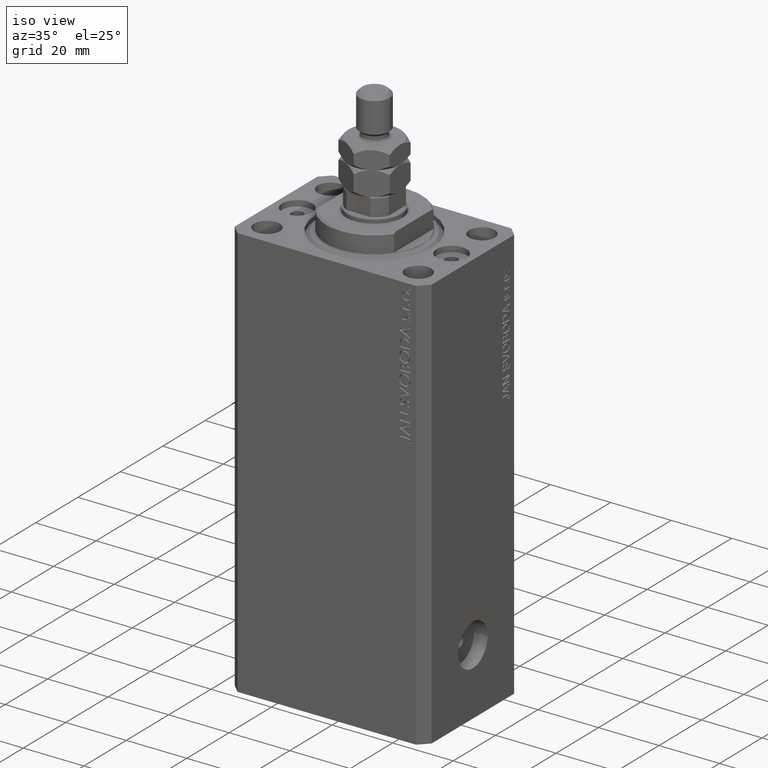
[diagram: clean part render]
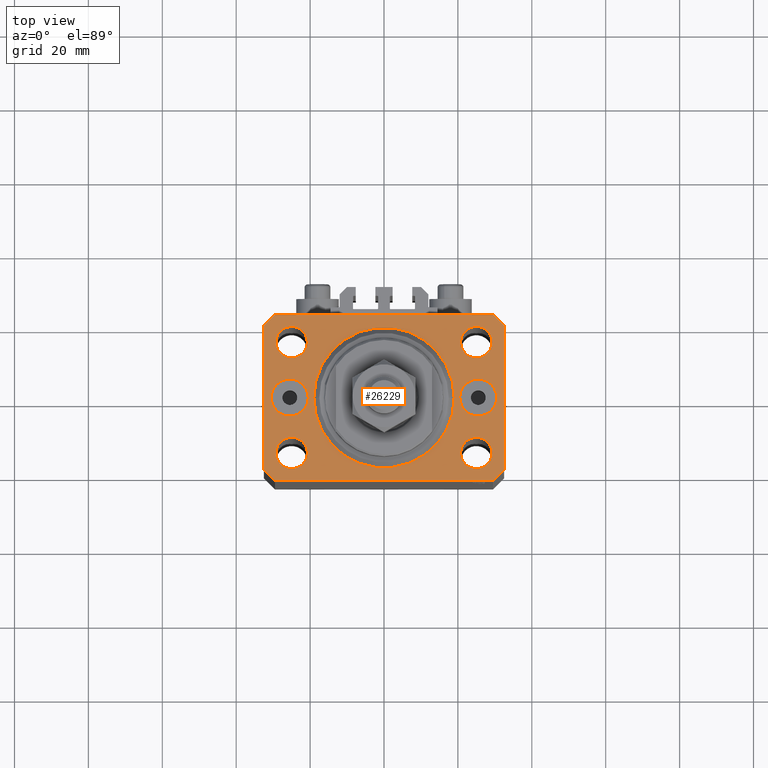
[diagram: tour spotlight — one face highlighted and labeled with its STEP entity id]
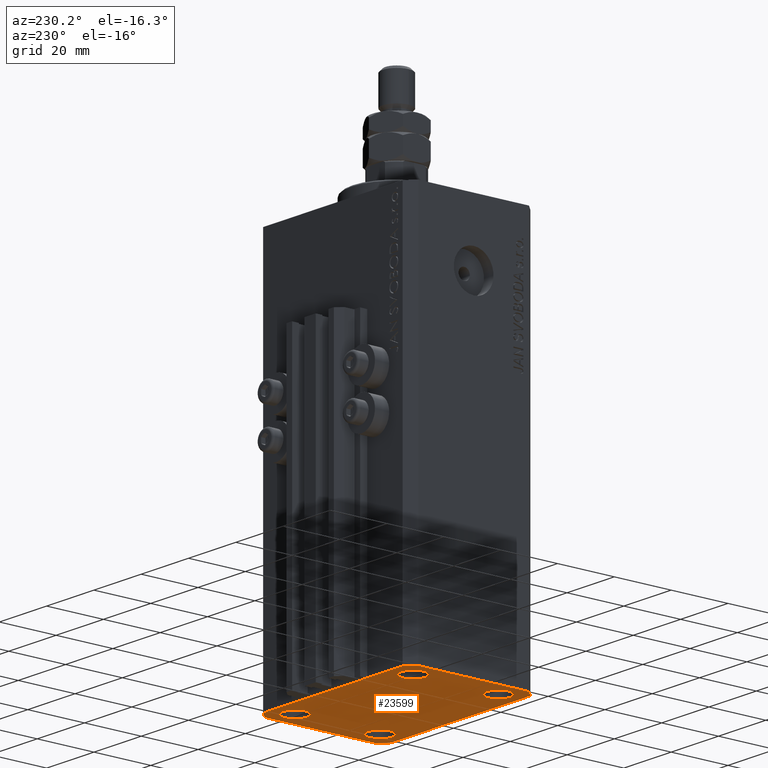
[diagram: tour spotlight — one face highlighted and labeled with its STEP entity id]
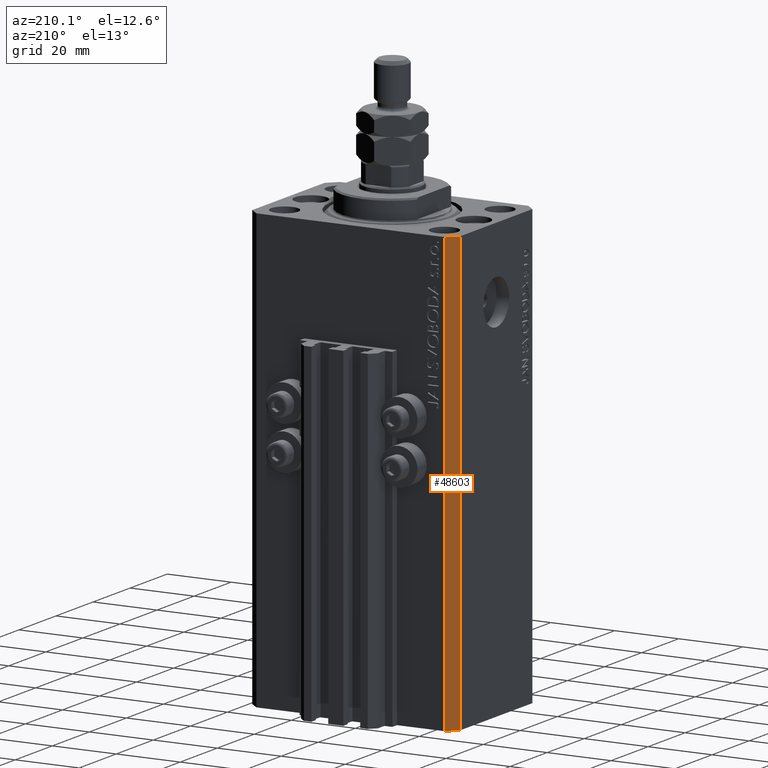
[diagram: tour spotlight — one face highlighted and labeled with its STEP entity id]
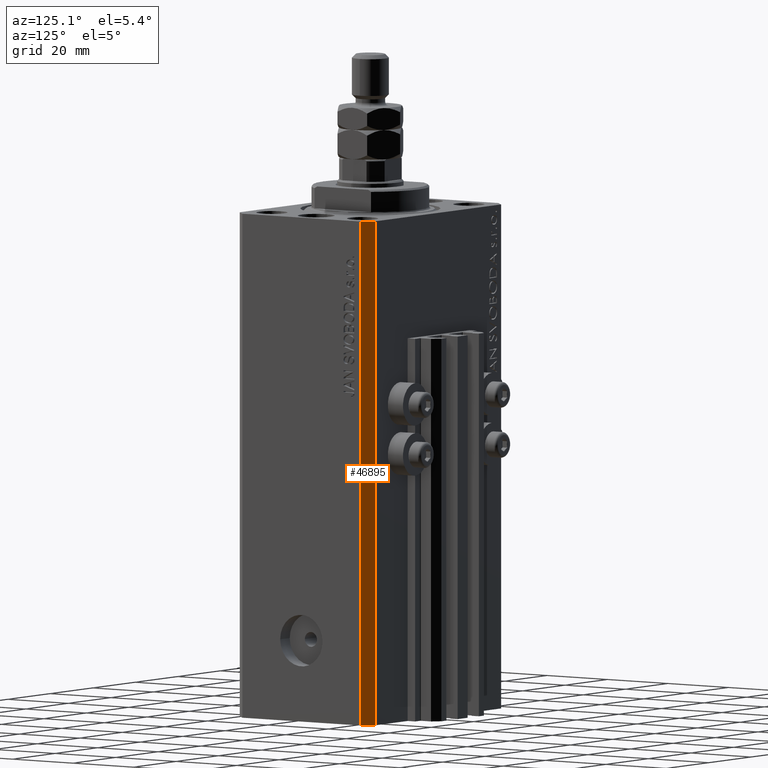
[diagram: tour spotlight — one face highlighted and labeled with its STEP entity id]
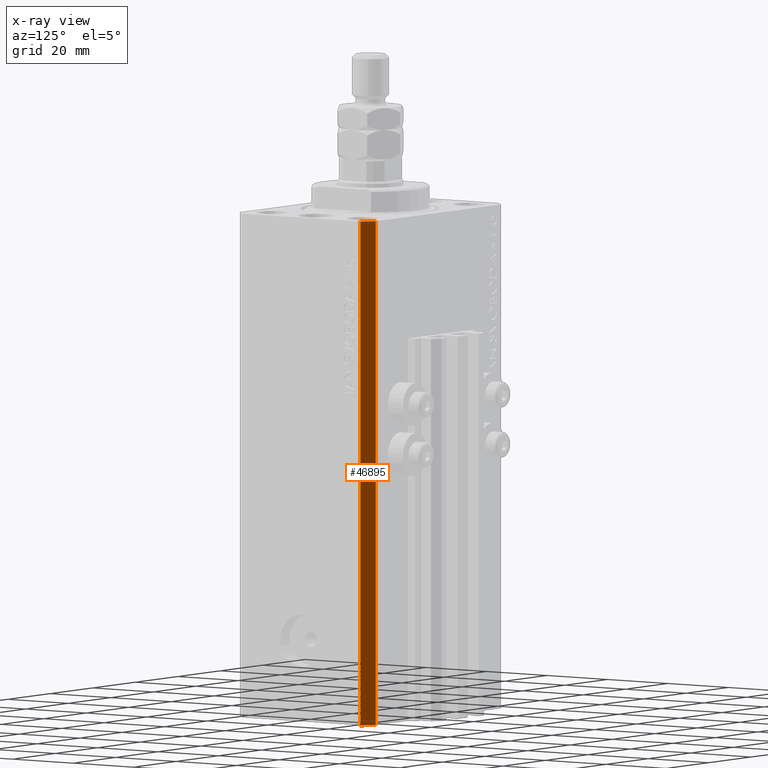
[diagram: x-ray of the same camera — body ghosted, this tour face saturated]
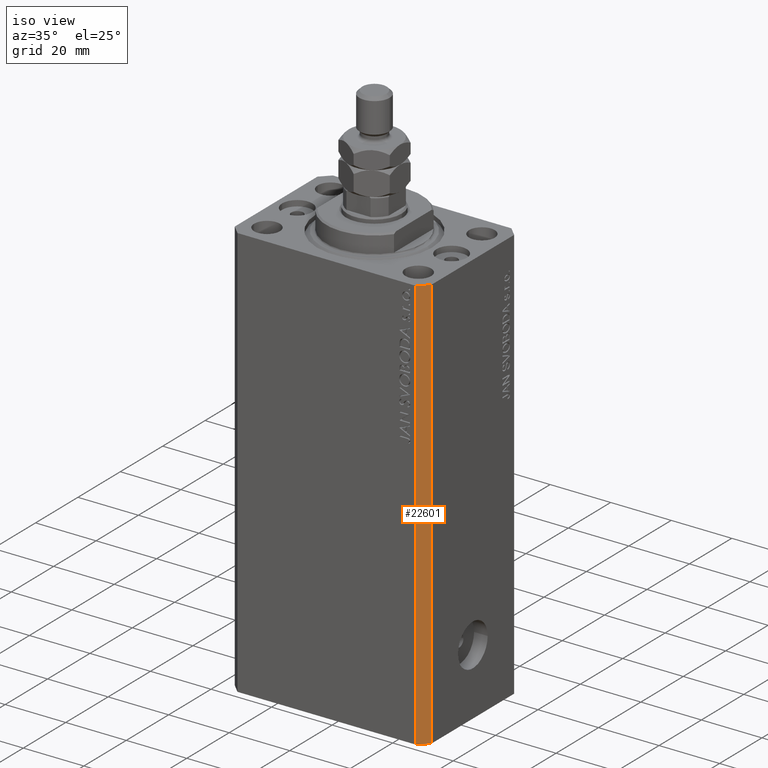
[diagram: tour spotlight — one face highlighted and labeled with its STEP entity id]
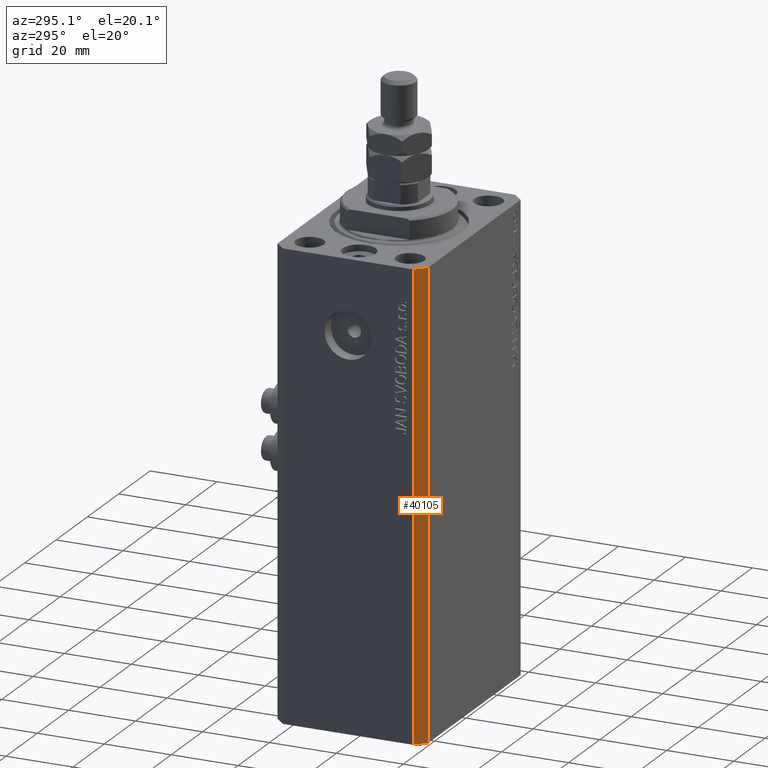
[diagram: tour spotlight — one face highlighted and labeled with its STEP entity id]
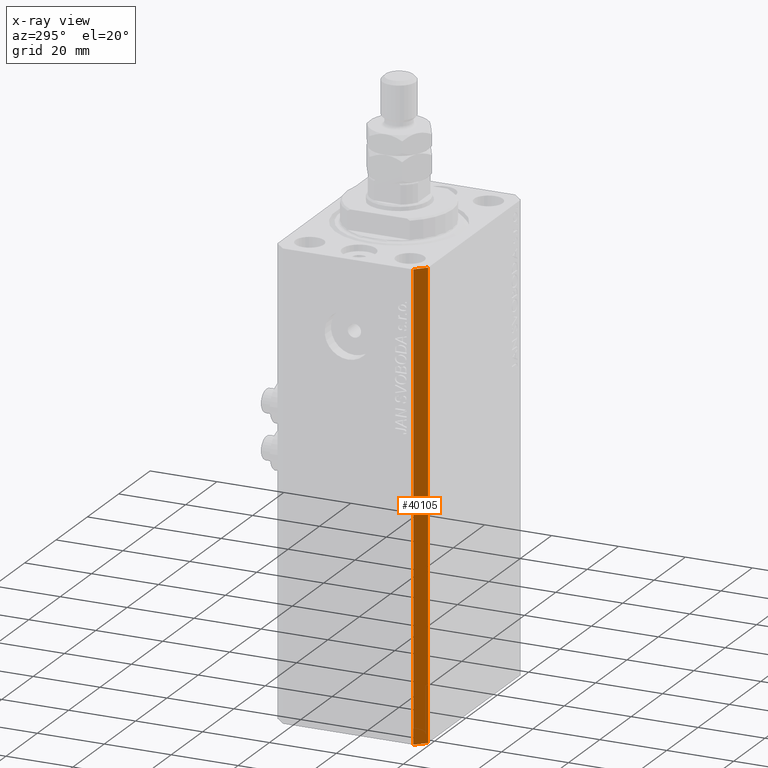
[diagram: x-ray of the same camera — body ghosted, this tour face saturated]
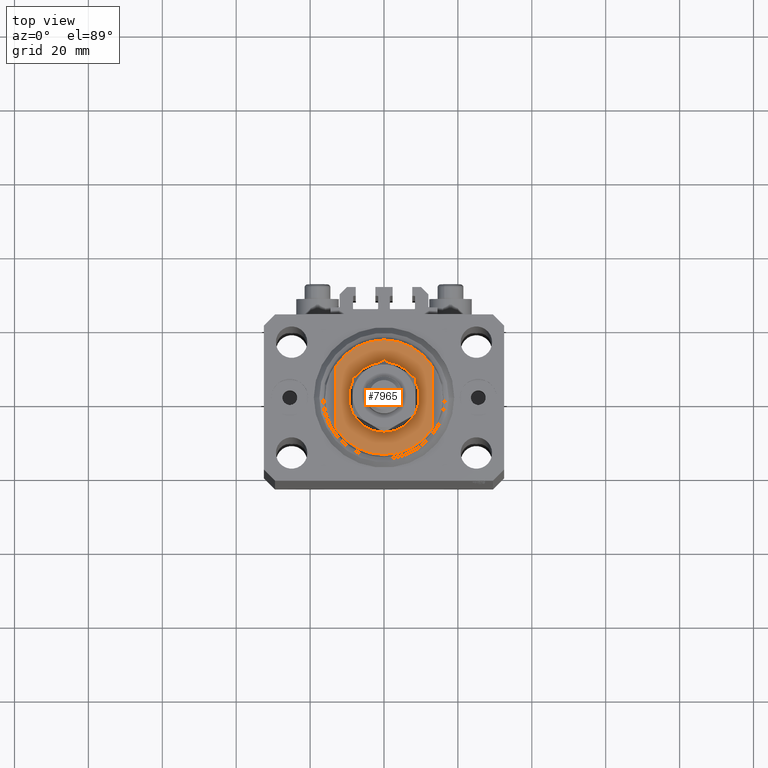
[diagram: tour spotlight — one face highlighted and labeled with its STEP entity id]
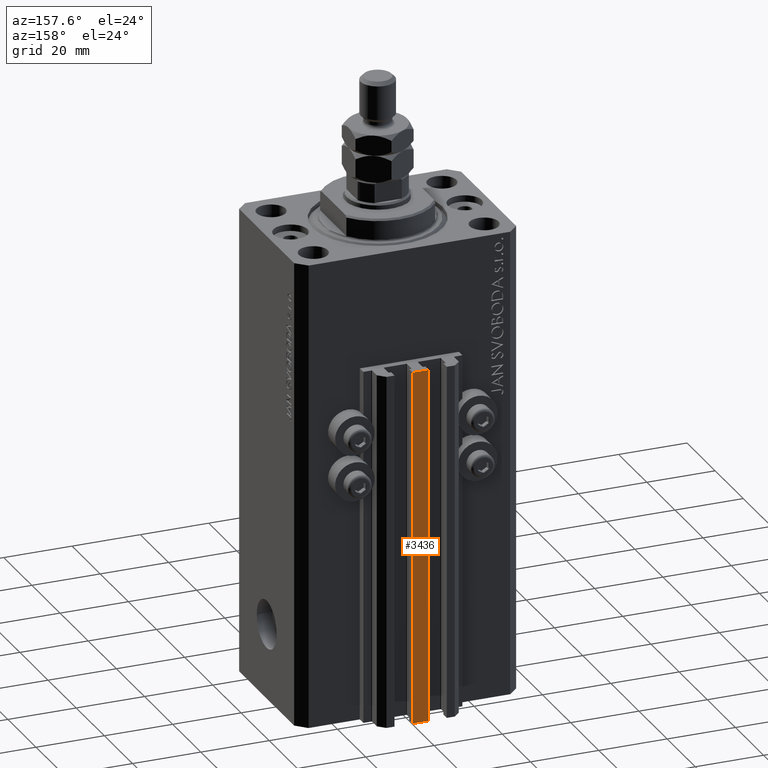
[diagram: tour spotlight — one face highlighted and labeled with its STEP entity id]
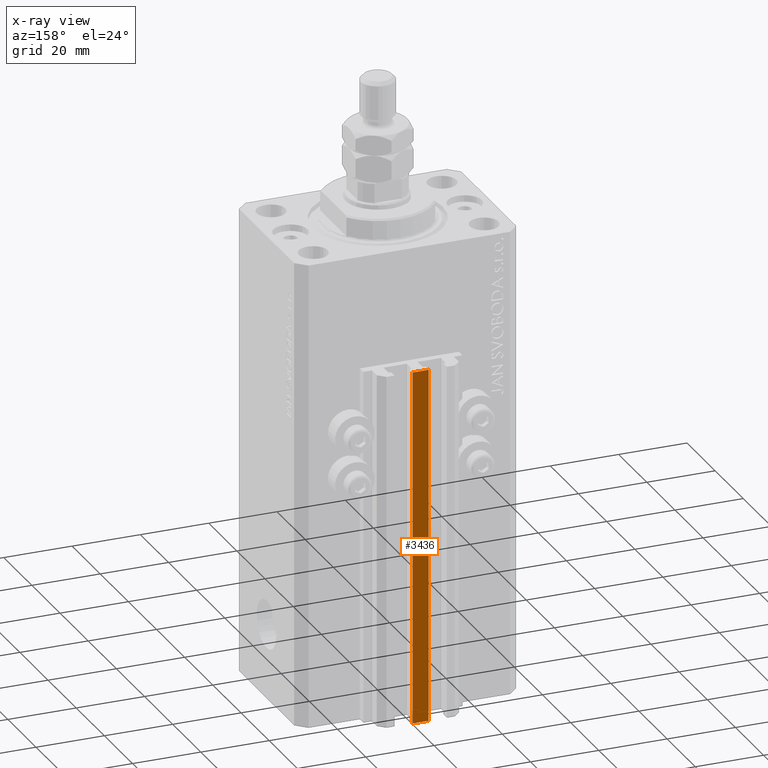
[diagram: x-ray of the same camera — body ghosted, this tour face saturated]
A machine part: a face-by-face anatomy tour. The part has 1083 B-rep faces; the first image is the clean iso view, then the 8 largest visible faces are spotlighted one at a time (largest first), each with its STEP entity span.

Face 1 — top view, entity #26229. In plain terms, the highlighted planar face has unit normal (0, 0, 1).
Definition (entity closure, byte-faithful):
#123 = DIRECTION ( 'NONE',  ( 1.000000000000000000, 0.000000000000000000, 0.000000000000000000 ) ) ;
#136 = EDGE_CURVE ( 'NONE', #14684, #15779, #31639, .T. ) ;
#461 = CARTESIAN_POINT ( 'NONE',  ( 20.49999999999665690, 6.123233995740857512E-16, 0.000000000000000000 ) ) ;
#1413 = DIRECTION ( 'NONE',  ( 1.000000000000000000, 0.000000000000000000, 0.000000000000000000 ) ) ;
#1656 = DIRECTION ( 'NONE',  ( 1.000000000000000000, 0.000000000000000000, 0.000000000000000000 ) ) ;
#1977 = PLANE ( 'NONE',  #7479 ) ;
#2093 = CIRCLE ( 'NONE', #35933, 4.249999999976314058 ) ;
#2382 = DIRECTION ( 'NONE',  ( 0.000000000000000000, 0.000000000000000000, 1.000000000000000000 ) ) ;
#2491 = DIRECTION ( 'NONE',  ( 0.000000000000000000, 0.000000000000000000, 1.000000000000000000 ) ) ;
#2909 = EDGE_LOOP ( 'NONE', ( #34752, #23903 ) ) ;
#3173 = ORIENTED_EDGE ( 'NONE', *, *, #37701, .F. ) ;
#3298 = CARTESIAN_POINT ( 'NONE',  ( -29.49999999999650413, -22.49999999999949907, 0.000000000000000000 ) ) ;
#3400 = VERTEX_POINT ( 'NONE', #45612 ) ;
#3610 = VECTOR ( 'NONE', #29818, 1000.000000000000000 ) ;
#3777 = DIRECTION ( 'NONE',  ( 1.000000000000000000, 0.000000000000000000, 0.000000000000000000 ) ) ;
#3844 = CARTESIAN_POINT ( 'NONE',  ( 24.99999999999999289, -15.00000000000000355, 0.000000000000000000 ) ) ;
#3851 = CARTESIAN_POINT ( 'NONE',  ( -29.49999999999650413, 22.49999999999949907, 0.000000000000000000 ) ) ;
#4166 = DIRECTION ( 'NONE',  ( 0.000000000000000000, 0.000000000000000000, 1.000000000000000000 ) ) ;
#4273 = DIRECTION ( 'NONE',  ( 1.334402673828349134E-14, 1.000000000000000000, 0.000000000000000000 ) ) ;
#4346 = CIRCLE ( 'NONE', #5121, 19.00000000000000000 ) ;
#4585 = EDGE_CURVE ( 'NONE', #23656, #6556, #6379, .T. ) ;
#4723 = VERTEX_POINT ( 'NONE', #26049 ) ;
#4747 = CARTESIAN_POINT ( 'NONE',  ( 32.49999999999651124, -19.49999999999949196, 0.000000000000000000 ) ) ;
#4891 = CARTESIAN_POINT ( 'NONE',  ( 0.000000000000000000, 0.000000000000000000, 0.000000000000000000 ) ) ;
#5004 = CARTESIAN_POINT ( 'NONE',  ( 25.00000000000000000, 14.99999999999999289, 0.000000000000000000 ) ) ;
#5121 = AXIS2_PLACEMENT_3D ( 'NONE', #4891, #8327, #46302 ) ;
#5155 = CIRCLE ( 'NONE', #26414, 4.249999999957291053 ) ;
#5268 = VERTEX_POINT ( 'NONE', #29408 ) ;
#5531 = CARTESIAN_POINT ( 'NONE',  ( 29.49999999999650413, -22.49999999999949196, 0.000000000000000000 ) ) ;
#5744 = DIRECTION ( 'NONE',  ( 0.7071067811865474617, -0.7071067811865474617, 0.000000000000000000 ) ) ;
#6379 = CIRCLE ( 'NONE', #8719, 5.000000000003342215 ) ;
#6556 = VERTEX_POINT ( 'NONE', #461 ) ;
#6657 = DIRECTION ( 'NONE',  ( 1.000000000000000000, 0.000000000000000000, -0.000000000000000000 ) ) ;
#6747 = EDGE_LOOP ( 'NONE', ( #8331, #23150 ) ) ;
#7130 = LINE ( 'NONE', #14770, #3610 ) ;
#7150 = DIRECTION ( 'NONE',  ( 1.000000000000000000, 0.000000000000000000, 0.000000000000000000 ) ) ;
#7169 = ORIENTED_EDGE ( 'NONE', *, *, #44282, .T. ) ;
#7479 = AXIS2_PLACEMENT_3D ( 'NONE', #9851, #36256, #6657 ) ;
#7604 = CARTESIAN_POINT ( 'NONE',  ( -25.00000000000000000, 14.99999999999999645, 0.000000000000000000 ) ) ;
#7617 = ORIENTED_EDGE ( 'NONE', *, *, #22019, .F. ) ;
#8327 = DIRECTION ( 'NONE',  ( 0.000000000000000000, 0.000000000000000000, 1.000000000000000000 ) ) ;
#8331 = ORIENTED_EDGE ( 'NONE', *, *, #20348, .F. ) ;
#8688 = VECTOR ( 'NONE', #41347, 1000.000000000000000 ) ;
#8719 = AXIS2_PLACEMENT_3D ( 'NONE', #35949, #43330, #1413 ) ;
#9188 = DIRECTION ( 'NONE',  ( 1.000000000000000000, 0.000000000000000000, 0.000000000000000000 ) ) ;
#9851 = CARTESIAN_POINT ( 'NONE',  ( 0.000000000000000000, 0.000000000000000000, 0.000000000000000000 ) ) ;
#10831 = AXIS2_PLACEMENT_3D ( 'NONE', #19901, #38903, #1656 ) ;
#11462 = VERTEX_POINT ( 'NONE', #46284 ) ;
#11537 = CARTESIAN_POINT ( 'NONE',  ( -30.50000000000333955, 6.123233995740857512E-16, 0.000000000000000000 ) ) ;
#11617 = CIRCLE ( 'NONE', #39190, 4.249999999976314058 ) ;
#11683 = AXIS2_PLACEMENT_3D ( 'NONE', #21222, #2491, #13826 ) ;
#11707 = CARTESIAN_POINT ( 'NONE',  ( -25.00000000000000000, 14.99999999999999645, 0.000000000000000000 ) ) ;
#11787 = CIRCLE ( 'NONE', #38593, 5.000000000003342215 ) ;
#11987 = CARTESIAN_POINT ( 'NONE',  ( 32.49999999999651124, -19.49999999999949196, 0.000000000000000000 ) ) ;
#13028 = ORIENTED_EDGE ( 'NONE', *, *, #26525, .F. ) ;
#13137 = CARTESIAN_POINT ( 'NONE',  ( -32.49999999999650413, -19.49999999999949907, 0.000000000000000000 ) ) ;
#13218 = LINE ( 'NONE', #28262, #30494 ) ;
#13303 = CIRCLE ( 'NONE', #36170, 4.250000000040370374 ) ;
#13756 = EDGE_LOOP ( 'NONE', ( #34743, #39194 ) ) ;
#13826 = DIRECTION ( 'NONE',  ( 1.000000000000000000, 0.000000000000000000, 0.000000000000000000 ) ) ;
#14678 = DIRECTION ( 'NONE',  ( 0.000000000000000000, -0.000000000000000000, -1.000000000000000000 ) ) ;
#14684 = VERTEX_POINT ( 'NONE', #11987 ) ;
#14770 = CARTESIAN_POINT ( 'NONE',  ( 32.49999999999702993, 19.49999999999945999, 0.000000000000000000 ) ) ;
#15683 = LINE ( 'NONE', #22370, #8688 ) ;
#15691 = CIRCLE ( 'NONE', #18870, 19.00000000000000000 ) ;
#15730 = CIRCLE ( 'NONE', #20756, 5.000000000003342215 ) ;
#15779 = VERTEX_POINT ( 'NONE', #35971 ) ;
#15864 = CARTESIAN_POINT ( 'NONE',  ( -25.50000000000000000, 0.000000000000000000, 0.000000000000000000 ) ) ;
#16456 = DIRECTION ( 'NONE',  ( 1.000000000000000000, 0.000000000000000000, 0.000000000000000000 ) ) ;
#16660 = EDGE_CURVE ( 'NONE', #11462, #3400, #39439, .T. ) ;
#16926 = VERTEX_POINT ( 'NONE', #38955 ) ;
#18256 = DIRECTION ( 'NONE',  ( 0.000000000000000000, 0.000000000000000000, 1.000000000000000000 ) ) ;
#18870 = AXIS2_PLACEMENT_3D ( 'NONE', #48659, #22766, #25981 ) ;
#18936 = ORIENTED_EDGE ( 'NONE', *, *, #21286, .F. ) ;
#19791 = DIRECTION ( 'NONE',  ( 0.000000000000000000, 0.000000000000000000, 1.000000000000000000 ) ) ;
#19901 = CARTESIAN_POINT ( 'NONE',  ( 25.00000000000000000, 14.99999999999999289, 0.000000000000000000 ) ) ;
#20348 = EDGE_CURVE ( 'NONE', #29911, #5268, #13303, .T. ) ;
#20440 = ORIENTED_EDGE ( 'NONE', *, *, #34004, .F. ) ;
#20756 = AXIS2_PLACEMENT_3D ( 'NONE', #37602, #14678, #123 ) ;
#20878 = DIRECTION ( 'NONE',  ( 0.000000000000000000, -1.000000000000000000, 0.000000000000000000 ) ) ;
#21207 = ORIENTED_EDGE ( 'NONE', *, *, #36840, .T. ) ;
#21222 = CARTESIAN_POINT ( 'NONE',  ( -24.99999999999999289, -15.00000000000000355, 0.000000000000000000 ) ) ;
#21286 = EDGE_CURVE ( 'NONE', #28399, #25370, #15691, .T. ) ;
#21341 = AXIS2_PLACEMENT_3D ( 'NONE', #11707, #30464, #45494 ) ;
#21606 = CARTESIAN_POINT ( 'NONE',  ( 30.50000000000333955, 0.000000000000000000, 0.000000000000000000 ) ) ;
#21944 = ORIENTED_EDGE ( 'NONE', *, *, #37697, .T. ) ;
#22019 = EDGE_CURVE ( 'NONE', #24010, #27158, #11787, .T. ) ;
#22370 = CARTESIAN_POINT ( 'NONE',  ( -29.49999999999650413, -22.49999999999949907, 0.000000000000000000 ) ) ;
#22735 = EDGE_CURVE ( 'NONE', #6556, #23656, #15730, .T. ) ;
#22766 = DIRECTION ( 'NONE',  ( 0.000000000000000000, 0.000000000000000000, 1.000000000000000000 ) ) ;
#23150 = ORIENTED_EDGE ( 'NONE', *, *, #39550, .F. ) ;
#23203 = VERTEX_POINT ( 'NONE', #3298 ) ;
#23239 = CARTESIAN_POINT ( 'NONE',  ( -20.49999999999665690, 0.000000000000000000, 0.000000000000000000 ) ) ;
#23656 = VERTEX_POINT ( 'NONE', #21606 ) ;
#23903 = ORIENTED_EDGE ( 'NONE', *, *, #27548, .F. ) ;
#24010 = VERTEX_POINT ( 'NONE', #23239 ) ;
#25112 = ORIENTED_EDGE ( 'NONE', *, *, #28357, .T. ) ;
#25142 = FACE_BOUND ( 'NONE', #6747, .T. ) ;
#25370 = VERTEX_POINT ( 'NONE', #32561 ) ;
#25615 = ORIENTED_EDGE ( 'NONE', *, *, #4585, .T. ) ;
#25899 = EDGE_CURVE ( 'NONE', #27158, #24010, #48424, .T. ) ;
#25941 = EDGE_CURVE ( 'NONE', #29174, #23203, #42478, .T. ) ;
#25981 = DIRECTION ( 'NONE',  ( 1.000000000000000000, 0.000000000000000000, 0.000000000000000000 ) ) ;
#26049 = CARTESIAN_POINT ( 'NONE',  ( 29.24999999995729283, 14.99999999999999289, 0.000000000000000000 ) ) ;
#26229 = ADVANCED_FACE ( 'NONE', ( #35775, #43647, #40200, #47593, #25142, #47830, #28122, #43887 ), #1977, .T. ) ;
#26414 = AXIS2_PLACEMENT_3D ( 'NONE', #5004, #19791, #30906 ) ;
#26467 = EDGE_CURVE ( 'NONE', #3400, #11462, #29564, .T. ) ;
#26525 = EDGE_CURVE ( 'NONE', #25370, #28399, #4346, .T. ) ;
#26580 = VECTOR ( 'NONE', #20878, 1000.000000000000000 ) ;
#27158 = VERTEX_POINT ( 'NONE', #11537 ) ;
#27309 = ORIENTED_EDGE ( 'NONE', *, *, #22735, .T. ) ;
#27548 = EDGE_CURVE ( 'NONE', #36837, #4723, #5155, .T. ) ;
#28047 = EDGE_LOOP ( 'NONE', ( #25615, #27309 ) ) ;
#28122 = FACE_BOUND ( 'NONE', #45665, .T. ) ;
#28133 = VERTEX_POINT ( 'NONE', #3851 ) ;
#28262 = CARTESIAN_POINT ( 'NONE',  ( -29.49999999999650413, 22.49999999999949907, 0.000000000000000000 ) ) ;
#28270 = CARTESIAN_POINT ( 'NONE',  ( 20.75000000004271072, 14.99999999999999289, 0.000000000000000000 ) ) ;
#28357 = EDGE_CURVE ( 'NONE', #47457, #14684, #40798, .T. ) ;
#28398 = ORIENTED_EDGE ( 'NONE', *, *, #25941, .T. ) ;
#28399 = VERTEX_POINT ( 'NONE', #31153 ) ;
#28518 = DIRECTION ( 'NONE',  ( -0.7071067811865474617, -0.7071067811865474617, 0.000000000000000000 ) ) ;
#28706 = CARTESIAN_POINT ( 'NONE',  ( 29.24999999997631051, -15.00000000000000355, 0.000000000000000000 ) ) ;
#28772 = CARTESIAN_POINT ( 'NONE',  ( 24.99999999999999289, -15.00000000000000355, 0.000000000000000000 ) ) ;
#28979 = EDGE_CURVE ( 'NONE', #15779, #41781, #7130, .T. ) ;
#29174 = VERTEX_POINT ( 'NONE', #32990 ) ;
#29408 = CARTESIAN_POINT ( 'NONE',  ( -29.25000000004036593, -15.00000000000000355, 0.000000000000000000 ) ) ;
#29564 = CIRCLE ( 'NONE', #46870, 4.250000000021375790 ) ;
#29818 = DIRECTION ( 'NONE',  ( -0.7071067811865344721, 0.7071067811865606734, 0.000000000000000000 ) ) ;
#29911 = VERTEX_POINT ( 'NONE', #32998 ) ;
#29952 = CARTESIAN_POINT ( 'NONE',  ( 29.49999999999650413, -22.49999999999949196, 0.000000000000000000 ) ) ;
#30173 = CARTESIAN_POINT ( 'NONE',  ( -24.99999999999999289, -15.00000000000000355, 0.000000000000000000 ) ) ;
#30464 = DIRECTION ( 'NONE',  ( 0.000000000000000000, 0.000000000000000000, 1.000000000000000000 ) ) ;
#30494 = VECTOR ( 'NONE', #28518, 1000.000000000000114 ) ;
#30906 = DIRECTION ( 'NONE',  ( 1.000000000000000000, 0.000000000000000000, 0.000000000000000000 ) ) ;
#31153 = CARTESIAN_POINT ( 'NONE',  ( 19.00000000000000000, 0.000000000000000000, 0.000000000000000000 ) ) ;
#31639 = LINE ( 'NONE', #4747, #43265 ) ;
#31896 = AXIS2_PLACEMENT_3D ( 'NONE', #15864, #46925, #9188 ) ;
#32561 = CARTESIAN_POINT ( 'NONE',  ( -19.00000000000000000, 2.326828918379970970E-15, 0.000000000000000000 ) ) ;
#32917 = VECTOR ( 'NONE', #40114, 1000.000000000000000 ) ;
#32990 = CARTESIAN_POINT ( 'NONE',  ( -32.49999999999650413, -19.49999999999949907, 0.000000000000000000 ) ) ;
#32998 = CARTESIAN_POINT ( 'NONE',  ( -20.74999999995962341, -15.00000000000000355, 0.000000000000000000 ) ) ;
#33227 = DIRECTION ( 'NONE',  ( 0.000000000000000000, 0.000000000000000000, 1.000000000000000000 ) ) ;
#34004 = EDGE_CURVE ( 'NONE', #36026, #47547, #2093, .T. ) ;
#34743 = ORIENTED_EDGE ( 'NONE', *, *, #16660, .F. ) ;
#34752 = ORIENTED_EDGE ( 'NONE', *, *, #37626, .F. ) ;
#35750 = ORIENTED_EDGE ( 'NONE', *, *, #28979, .T. ) ;
#35775 = FACE_OUTER_BOUND ( 'NONE', #46209, .T. ) ;
#35833 = EDGE_CURVE ( 'NONE', #28133, #16926, #13218, .T. ) ;
#35933 = AXIS2_PLACEMENT_3D ( 'NONE', #3844, #33227, #40366 ) ;
#35949 = CARTESIAN_POINT ( 'NONE',  ( 25.50000000000000000, 0.000000000000000000, 0.000000000000000000 ) ) ;
#35971 = CARTESIAN_POINT ( 'NONE',  ( 32.49999999999702993, 19.49999999999945999, 0.000000000000000000 ) ) ;
#35979 = EDGE_LOOP ( 'NONE', ( #18936, #13028 ) ) ;
#36026 = VERTEX_POINT ( 'NONE', #41542 ) ;
#36170 = AXIS2_PLACEMENT_3D ( 'NONE', #30173, #45433, #3777 ) ;
#36256 = DIRECTION ( 'NONE',  ( 0.000000000000000000, 0.000000000000000000, 1.000000000000000000 ) ) ;
#36352 = EDGE_LOOP ( 'NONE', ( #3173, #20440 ) ) ;
#36415 = CARTESIAN_POINT ( 'NONE',  ( -32.49999999999650413, 19.49999999999949907, 0.000000000000000000 ) ) ;
#36655 = LINE ( 'NONE', #36415, #26580 ) ;
#36837 = VERTEX_POINT ( 'NONE', #28270 ) ;
#36840 = EDGE_CURVE ( 'NONE', #16926, #29174, #36655, .T. ) ;
#37243 = CARTESIAN_POINT ( 'NONE',  ( -25.50000000000000000, 0.000000000000000000, 0.000000000000000000 ) ) ;
#37555 = ORIENTED_EDGE ( 'NONE', *, *, #25899, .F. ) ;
#37602 = CARTESIAN_POINT ( 'NONE',  ( 25.50000000000000000, 0.000000000000000000, 0.000000000000000000 ) ) ;
#37626 = EDGE_CURVE ( 'NONE', #4723, #36837, #47843, .T. ) ;
#37697 = EDGE_CURVE ( 'NONE', #41781, #28133, #47995, .T. ) ;
#37701 = EDGE_CURVE ( 'NONE', #47547, #36026, #11617, .T. ) ;
#38170 = VECTOR ( 'NONE', #5744, 1000.000000000000114 ) ;
#38279 = VECTOR ( 'NONE', #44986, 1000.000000000000000 ) ;
#38593 = AXIS2_PLACEMENT_3D ( 'NONE', #37243, #18256, #7150 ) ;
#38903 = DIRECTION ( 'NONE',  ( 0.000000000000000000, 0.000000000000000000, 1.000000000000000000 ) ) ;
#38955 = CARTESIAN_POINT ( 'NONE',  ( -32.49999999999650413, 19.49999999999949907, 0.000000000000000000 ) ) ;
#39190 = AXIS2_PLACEMENT_3D ( 'NONE', #28772, #2382, #44542 ) ;
#39194 = ORIENTED_EDGE ( 'NONE', *, *, #26467, .F. ) ;
#39439 = CIRCLE ( 'NONE', #21341, 4.250000000021375790 ) ;
#39550 = EDGE_CURVE ( 'NONE', #5268, #29911, #40038, .T. ) ;
#40038 = CIRCLE ( 'NONE', #11683, 4.250000000040370374 ) ;
#40114 = DIRECTION ( 'NONE',  ( -1.000000000000000000, -3.528251137580330676E-16, 0.000000000000000000 ) ) ;
#40200 = FACE_BOUND ( 'NONE', #2909, .T. ) ;
#40366 = DIRECTION ( 'NONE',  ( 1.000000000000000000, 0.000000000000000000, 0.000000000000000000 ) ) ;
#40798 = LINE ( 'NONE', #29952, #38279 ) ;
#41347 = DIRECTION ( 'NONE',  ( 1.000000000000000000, 1.176083712526788232E-16, 0.000000000000000000 ) ) ;
#41542 = CARTESIAN_POINT ( 'NONE',  ( 20.75000000002367884, -15.00000000000000355, 0.000000000000000000 ) ) ;
#41781 = VERTEX_POINT ( 'NONE', #44189 ) ;
#42478 = LINE ( 'NONE', #13137, #38170 ) ;
#43265 = VECTOR ( 'NONE', #4273, 1000.000000000000000 ) ;
#43330 = DIRECTION ( 'NONE',  ( 0.000000000000000000, -0.000000000000000000, -1.000000000000000000 ) ) ;
#43647 = FACE_BOUND ( 'NONE', #13756, .T. ) ;
#43887 = FACE_BOUND ( 'NONE', #28047, .T. ) ;
#44189 = CARTESIAN_POINT ( 'NONE',  ( 29.49999999999707967, 22.49999999999952038, 0.000000000000000000 ) ) ;
#44282 = EDGE_CURVE ( 'NONE', #23203, #47457, #15683, .T. ) ;
#44542 = DIRECTION ( 'NONE',  ( 1.000000000000000000, 0.000000000000000000, 0.000000000000000000 ) ) ;
#44986 = DIRECTION ( 'NONE',  ( 0.7071067811865483499, 0.7071067811865466846, 0.000000000000000000 ) ) ;
#45433 = DIRECTION ( 'NONE',  ( 0.000000000000000000, 0.000000000000000000, 1.000000000000000000 ) ) ;
#45494 = DIRECTION ( 'NONE',  ( 1.000000000000000000, 0.000000000000000000, 0.000000000000000000 ) ) ;
#45612 = CARTESIAN_POINT ( 'NONE',  ( -29.25000000002137668, 14.99999999999999645, 0.000000000000000000 ) ) ;
#45665 = EDGE_LOOP ( 'NONE', ( #7617, #37555 ) ) ;
#46209 = EDGE_LOOP ( 'NONE', ( #21944, #48588, #21207, #28398, #7169, #25112, #47202, #35750 ) ) ;
#46284 = CARTESIAN_POINT ( 'NONE',  ( -20.74999999997862687, 14.99999999999999645, 0.000000000000000000 ) ) ;
#46302 = DIRECTION ( 'NONE',  ( 1.000000000000000000, 0.000000000000000000, 0.000000000000000000 ) ) ;
#46870 = AXIS2_PLACEMENT_3D ( 'NONE', #7604, #4166, #16456 ) ;
#46925 = DIRECTION ( 'NONE',  ( 0.000000000000000000, 0.000000000000000000, 1.000000000000000000 ) ) ;
#47202 = ORIENTED_EDGE ( 'NONE', *, *, #136, .T. ) ;
#47457 = VERTEX_POINT ( 'NONE', #5531 ) ;
#47517 = CARTESIAN_POINT ( 'NONE',  ( 29.49999999999707967, 22.49999999999952038, 0.000000000000000000 ) ) ;
#47547 = VERTEX_POINT ( 'NONE', #28706 ) ;
#47593 = FACE_BOUND ( 'NONE', #36352, .T. ) ;
#47830 = FACE_BOUND ( 'NONE', #35979, .T. ) ;
#47843 = CIRCLE ( 'NONE', #10831, 4.249999999957291053 ) ;
#47995 = LINE ( 'NONE', #47517, #32917 ) ;
#48424 = CIRCLE ( 'NONE', #31896, 5.000000000003342215 ) ;
#48588 = ORIENTED_EDGE ( 'NONE', *, *, #35833, .T. ) ;
#48659 = CARTESIAN_POINT ( 'NONE',  ( 0.000000000000000000, 0.000000000000000000, 0.000000000000000000 ) ) ;

Face 2 — auxiliary view, entity #23599. In plain terms, the highlighted planar face has unit normal (0, 0, 1).
Definition (entity closure, byte-faithful):
#1136 = VERTEX_POINT ( 'NONE', #25386 ) ;
#1203 = DIRECTION ( 'NONE',  ( -0.7071067811865474617, -0.7071067811865474617, 0.000000000000000000 ) ) ;
#1216 = ORIENTED_EDGE ( 'NONE', *, *, #18891, .F. ) ;
#1657 = ORIENTED_EDGE ( 'NONE', *, *, #47684, .F. ) ;
#1915 = AXIS2_PLACEMENT_3D ( 'NONE', #24886, #28833, #43870 ) ;
#1939 = VERTEX_POINT ( 'NONE', #13802 ) ;
#2232 = ORIENTED_EDGE ( 'NONE', *, *, #36039, .F. ) ;
#4077 = LINE ( 'NONE', #7748, #12348 ) ;
#4429 = ORIENTED_EDGE ( 'NONE', *, *, #31350, .F. ) ;
#4675 = CARTESIAN_POINT ( 'NONE',  ( -20.74999999995962341, -15.00000000000000355, -137.0000000000000000 ) ) ;
#4679 = CIRCLE ( 'NONE', #48784, 4.250000000021375790 ) ;
#4839 = DIRECTION ( 'NONE',  ( 1.000000000000000000, 0.000000000000000000, 0.000000000000000000 ) ) ;
#5356 = EDGE_LOOP ( 'NONE', ( #37424, #22270 ) ) ;
#5533 = VECTOR ( 'NONE', #1203, 1000.000000000000114 ) ;
#5906 = CARTESIAN_POINT ( 'NONE',  ( 29.49999999999650413, -22.49999999999949196, -137.0000000000000000 ) ) ;
#6621 = DIRECTION ( 'NONE',  ( -0.000000000000000000, -0.000000000000000000, -1.000000000000000000 ) ) ;
#6628 = CARTESIAN_POINT ( 'NONE',  ( 20.75000000004271072, 14.99999999999999289, -137.0000000000000000 ) ) ;
#6804 = FACE_BOUND ( 'NONE', #11768, .T. ) ;
#7160 = DIRECTION ( 'NONE',  ( -0.000000000000000000, -0.000000000000000000, -1.000000000000000000 ) ) ;
#7404 = ORIENTED_EDGE ( 'NONE', *, *, #41867, .F. ) ;
#7748 = CARTESIAN_POINT ( 'NONE',  ( -29.49999999999650413, -22.49999999999949907, -137.0000000000000000 ) ) ;
#8260 = CARTESIAN_POINT ( 'NONE',  ( -29.25000000004036593, -15.00000000000000355, -137.0000000000000000 ) ) ;
#8596 = VERTEX_POINT ( 'NONE', #9061 ) ;
#9061 = CARTESIAN_POINT ( 'NONE',  ( 20.75000000002367884, -15.00000000000000355, -137.0000000000000000 ) ) ;
#9448 = DIRECTION ( 'NONE',  ( -0.000000000000000000, -0.000000000000000000, -1.000000000000000000 ) ) ;
#9901 = DIRECTION ( 'NONE',  ( -0.000000000000000000, -0.000000000000000000, -1.000000000000000000 ) ) ;
#10292 = VECTOR ( 'NONE', #40900, 1000.000000000000000 ) ;
#10812 = CARTESIAN_POINT ( 'NONE',  ( 29.49999999999650413, -22.49999999999949196, -137.0000000000000000 ) ) ;
#11685 = VECTOR ( 'NONE', #40498, 1000.000000000000000 ) ;
#11768 = EDGE_LOOP ( 'NONE', ( #7404, #27852 ) ) ;
#11773 = EDGE_LOOP ( 'NONE', ( #42259, #1657 ) ) ;
#12347 = VERTEX_POINT ( 'NONE', #5906 ) ;
#12348 = VECTOR ( 'NONE', #45008, 1000.000000000000000 ) ;
#12424 = EDGE_CURVE ( 'NONE', #12347, #1939, #44608, .T. ) ;
#12445 = CARTESIAN_POINT ( 'NONE',  ( -29.49999999999650413, -22.49999999999949907, -137.0000000000000000 ) ) ;
#12640 = VECTOR ( 'NONE', #38776, 1000.000000000000114 ) ;
#13802 = CARTESIAN_POINT ( 'NONE',  ( 32.49999999999651124, -19.49999999999949196, -137.0000000000000000 ) ) ;
#13959 = DIRECTION ( 'NONE',  ( 1.000000000000000000, 0.000000000000000000, -0.000000000000000000 ) ) ;
#14017 = AXIS2_PLACEMENT_3D ( 'NONE', #33621, #34109, #23324 ) ;
#14092 = CARTESIAN_POINT ( 'NONE',  ( -25.00000000000000000, 14.99999999999999645, -137.0000000000000000 ) ) ;
#14448 = FACE_OUTER_BOUND ( 'NONE', #35692, .T. ) ;
#14592 = LINE ( 'NONE', #21515, #11685 ) ;
#15014 = CARTESIAN_POINT ( 'NONE',  ( -20.74999999997862687, 14.99999999999999645, -137.0000000000000000 ) ) ;
#15839 = VERTEX_POINT ( 'NONE', #35729 ) ;
#16079 = LINE ( 'NONE', #27674, #12640 ) ;
#17651 = CIRCLE ( 'NONE', #1915, 4.249999999976314058 ) ;
#17679 = CARTESIAN_POINT ( 'NONE',  ( -29.49999999999650413, 22.49999999999949907, -137.0000000000000000 ) ) ;
#18015 = LINE ( 'NONE', #21726, #34646 ) ;
#18566 = CIRCLE ( 'NONE', #25681, 4.249999999957291053 ) ;
#18598 = VECTOR ( 'NONE', #28542, 1000.000000000000000 ) ;
#18786 = VERTEX_POINT ( 'NONE', #28911 ) ;
#18891 = EDGE_CURVE ( 'NONE', #41129, #1136, #14592, .T. ) ;
#20489 = VERTEX_POINT ( 'NONE', #36781 ) ;
#20697 = ORIENTED_EDGE ( 'NONE', *, *, #32587, .F. ) ;
#21226 = ORIENTED_EDGE ( 'NONE', *, *, #46492, .F. ) ;
#21266 = CIRCLE ( 'NONE', #30732, 4.250000000040370374 ) ;
#21515 = CARTESIAN_POINT ( 'NONE',  ( -32.49999999999650413, 19.49999999999949907, -137.0000000000000000 ) ) ;
#21726 = CARTESIAN_POINT ( 'NONE',  ( 32.49999999999651124, -19.49999999999949196, -137.0000000000000000 ) ) ;
#21949 = ORIENTED_EDGE ( 'NONE', *, *, #33958, .F. ) ;
#22270 = ORIENTED_EDGE ( 'NONE', *, *, #38106, .F. ) ;
#22880 = AXIS2_PLACEMENT_3D ( 'NONE', #48180, #44478, #36838 ) ;
#23324 = DIRECTION ( 'NONE',  ( 1.000000000000000000, 0.000000000000000000, 0.000000000000000000 ) ) ;
#23599 = ADVANCED_FACE ( 'NONE', ( #43800, #25051, #29254, #6804, #14448 ), #25549, .F. ) ;
#24253 = VERTEX_POINT ( 'NONE', #4675 ) ;
#24349 = EDGE_CURVE ( 'NONE', #18786, #8596, #17651, .T. ) ;
#24590 = LINE ( 'NONE', #32243, #18598 ) ;
#24886 = CARTESIAN_POINT ( 'NONE',  ( 24.99999999999999289, -15.00000000000000355, -137.0000000000000000 ) ) ;
#24949 = DIRECTION ( 'NONE',  ( 1.000000000000000000, 0.000000000000000000, 0.000000000000000000 ) ) ;
#25051 = FACE_BOUND ( 'NONE', #11773, .T. ) ;
#25169 = DIRECTION ( 'NONE',  ( 1.000000000000000000, 0.000000000000000000, 0.000000000000000000 ) ) ;
#25386 = CARTESIAN_POINT ( 'NONE',  ( -32.49999999999650413, -19.49999999999949907, -137.0000000000000000 ) ) ;
#25549 = PLANE ( 'NONE',  #46772 ) ;
#25681 = AXIS2_PLACEMENT_3D ( 'NONE', #41180, #7160, #25169 ) ;
#25755 = VECTOR ( 'NONE', #47822, 1000.000000000000000 ) ;
#26019 = VERTEX_POINT ( 'NONE', #33114 ) ;
#26387 = VERTEX_POINT ( 'NONE', #15014 ) ;
#26408 = AXIS2_PLACEMENT_3D ( 'NONE', #39302, #9448, #35614 ) ;
#26576 = CARTESIAN_POINT ( 'NONE',  ( -32.49999999999650413, 19.49999999999949907, -137.0000000000000000 ) ) ;
#26786 = AXIS2_PLACEMENT_3D ( 'NONE', #31727, #27034, #4839 ) ;
#27034 = DIRECTION ( 'NONE',  ( -0.000000000000000000, -0.000000000000000000, -1.000000000000000000 ) ) ;
#27065 = EDGE_LOOP ( 'NONE', ( #20697, #4429 ) ) ;
#27674 = CARTESIAN_POINT ( 'NONE',  ( -32.49999999999650413, -19.49999999999949907, -137.0000000000000000 ) ) ;
#27852 = ORIENTED_EDGE ( 'NONE', *, *, #43373, .F. ) ;
#27978 = VERTEX_POINT ( 'NONE', #17679 ) ;
#28353 = CARTESIAN_POINT ( 'NONE',  ( 32.49999999999702993, 19.49999999999945999, -137.0000000000000000 ) ) ;
#28542 = DIRECTION ( 'NONE',  ( -1.000000000000000000, -3.528251137580330676E-16, 0.000000000000000000 ) ) ;
#28833 = DIRECTION ( 'NONE',  ( -0.000000000000000000, -0.000000000000000000, -1.000000000000000000 ) ) ;
#28911 = CARTESIAN_POINT ( 'NONE',  ( 29.24999999997631051, -15.00000000000000355, -137.0000000000000000 ) ) ;
#29254 = FACE_BOUND ( 'NONE', #27065, .T. ) ;
#29790 = CARTESIAN_POINT ( 'NONE',  ( -24.99999999999999289, -15.00000000000000355, -137.0000000000000000 ) ) ;
#30732 = AXIS2_PLACEMENT_3D ( 'NONE', #29790, #6621, #33273 ) ;
#31291 = ORIENTED_EDGE ( 'NONE', *, *, #46967, .F. ) ;
#31350 = EDGE_CURVE ( 'NONE', #33071, #31759, #35080, .T. ) ;
#31727 = CARTESIAN_POINT ( 'NONE',  ( -25.00000000000000000, 14.99999999999999645, -137.0000000000000000 ) ) ;
#31759 = VERTEX_POINT ( 'NONE', #33797 ) ;
#32068 = LINE ( 'NONE', #28353, #25755 ) ;
#32243 = CARTESIAN_POINT ( 'NONE',  ( 29.49999999999707967, 22.49999999999952038, -137.0000000000000000 ) ) ;
#32587 = EDGE_CURVE ( 'NONE', #31759, #33071, #18566, .T. ) ;
#33071 = VERTEX_POINT ( 'NONE', #6628 ) ;
#33078 = LINE ( 'NONE', #38205, #5533 ) ;
#33114 = CARTESIAN_POINT ( 'NONE',  ( 29.49999999999707967, 22.49999999999952038, -137.0000000000000000 ) ) ;
#33273 = DIRECTION ( 'NONE',  ( 1.000000000000000000, 0.000000000000000000, 0.000000000000000000 ) ) ;
#33621 = CARTESIAN_POINT ( 'NONE',  ( -24.99999999999999289, -15.00000000000000355, -137.0000000000000000 ) ) ;
#33797 = CARTESIAN_POINT ( 'NONE',  ( 29.24999999995729283, 14.99999999999999289, -137.0000000000000000 ) ) ;
#33958 = EDGE_CURVE ( 'NONE', #26019, #27978, #24590, .T. ) ;
#34109 = DIRECTION ( 'NONE',  ( -0.000000000000000000, -0.000000000000000000, -1.000000000000000000 ) ) ;
#34115 = VERTEX_POINT ( 'NONE', #8260 ) ;
#34340 = EDGE_CURVE ( 'NONE', #15839, #26019, #32068, .T. ) ;
#34646 = VECTOR ( 'NONE', #48583, 1000.000000000000000 ) ;
#35080 = CIRCLE ( 'NONE', #26408, 4.249999999957291053 ) ;
#35458 = CIRCLE ( 'NONE', #22880, 4.249999999976314058 ) ;
#35473 = ORIENTED_EDGE ( 'NONE', *, *, #47725, .F. ) ;
#35614 = DIRECTION ( 'NONE',  ( 1.000000000000000000, 0.000000000000000000, 0.000000000000000000 ) ) ;
#35692 = EDGE_LOOP ( 'NONE', ( #21949, #48455, #21226, #38943, #2232, #35473, #1216, #31291 ) ) ;
#35729 = CARTESIAN_POINT ( 'NONE',  ( 32.49999999999702993, 19.49999999999945999, -137.0000000000000000 ) ) ;
#36039 = EDGE_CURVE ( 'NONE', #37929, #12347, #4077, .T. ) ;
#36653 = DIRECTION ( 'NONE',  ( 0.000000000000000000, 0.000000000000000000, 1.000000000000000000 ) ) ;
#36781 = CARTESIAN_POINT ( 'NONE',  ( -29.25000000002137668, 14.99999999999999645, -137.0000000000000000 ) ) ;
#36838 = DIRECTION ( 'NONE',  ( 1.000000000000000000, 0.000000000000000000, 0.000000000000000000 ) ) ;
#37424 = ORIENTED_EDGE ( 'NONE', *, *, #47231, .F. ) ;
#37929 = VERTEX_POINT ( 'NONE', #12445 ) ;
#38106 = EDGE_CURVE ( 'NONE', #34115, #24253, #45515, .T. ) ;
#38205 = CARTESIAN_POINT ( 'NONE',  ( -29.49999999999650413, 22.49999999999949907, -137.0000000000000000 ) ) ;
#38776 = DIRECTION ( 'NONE',  ( 0.7071067811865474617, -0.7071067811865474617, 0.000000000000000000 ) ) ;
#38943 = ORIENTED_EDGE ( 'NONE', *, *, #12424, .F. ) ;
#39302 = CARTESIAN_POINT ( 'NONE',  ( 25.00000000000000000, 14.99999999999999289, -137.0000000000000000 ) ) ;
#40099 = CARTESIAN_POINT ( 'NONE',  ( 0.000000000000000000, 0.000000000000000000, -137.0000000000000000 ) ) ;
#40498 = DIRECTION ( 'NONE',  ( 0.000000000000000000, -1.000000000000000000, 0.000000000000000000 ) ) ;
#40900 = DIRECTION ( 'NONE',  ( 0.7071067811865483499, 0.7071067811865466846, 0.000000000000000000 ) ) ;
#41129 = VERTEX_POINT ( 'NONE', #26576 ) ;
#41180 = CARTESIAN_POINT ( 'NONE',  ( 25.00000000000000000, 14.99999999999999289, -137.0000000000000000 ) ) ;
#41867 = EDGE_CURVE ( 'NONE', #26387, #20489, #4679, .T. ) ;
#42259 = ORIENTED_EDGE ( 'NONE', *, *, #24349, .F. ) ;
#43337 = CIRCLE ( 'NONE', #26786, 4.250000000021375790 ) ;
#43373 = EDGE_CURVE ( 'NONE', #20489, #26387, #43337, .T. ) ;
#43800 = FACE_BOUND ( 'NONE', #5356, .T. ) ;
#43870 = DIRECTION ( 'NONE',  ( 1.000000000000000000, 0.000000000000000000, 0.000000000000000000 ) ) ;
#44478 = DIRECTION ( 'NONE',  ( -0.000000000000000000, -0.000000000000000000, -1.000000000000000000 ) ) ;
#44608 = LINE ( 'NONE', #10812, #10292 ) ;
#45008 = DIRECTION ( 'NONE',  ( 1.000000000000000000, 1.176083712526788232E-16, 0.000000000000000000 ) ) ;
#45515 = CIRCLE ( 'NONE', #14017, 4.250000000040370374 ) ;
#46492 = EDGE_CURVE ( 'NONE', #1939, #15839, #18015, .T. ) ;
#46772 = AXIS2_PLACEMENT_3D ( 'NONE', #40099, #36653, #13959 ) ;
#46967 = EDGE_CURVE ( 'NONE', #27978, #41129, #33078, .T. ) ;
#47231 = EDGE_CURVE ( 'NONE', #24253, #34115, #21266, .T. ) ;
#47684 = EDGE_CURVE ( 'NONE', #8596, #18786, #35458, .T. ) ;
#47725 = EDGE_CURVE ( 'NONE', #1136, #37929, #16079, .T. ) ;
#47822 = DIRECTION ( 'NONE',  ( -0.7071067811865344721, 0.7071067811865606734, 0.000000000000000000 ) ) ;
#48180 = CARTESIAN_POINT ( 'NONE',  ( 24.99999999999999289, -15.00000000000000355, -137.0000000000000000 ) ) ;
#48455 = ORIENTED_EDGE ( 'NONE', *, *, #34340, .F. ) ;
#48583 = DIRECTION ( 'NONE',  ( 1.334402673828349134E-14, 1.000000000000000000, 0.000000000000000000 ) ) ;
#48784 = AXIS2_PLACEMENT_3D ( 'NONE', #14092, #9901, #24949 ) ;

Face 3 — auxiliary view, entity #48603. In plain terms, the highlighted planar face has unit normal (-0.7071, 0.7071, 0).
Definition (entity closure, byte-faithful):
#1203 = DIRECTION ( 'NONE',  ( -0.7071067811865474617, -0.7071067811865474617, 0.000000000000000000 ) ) ;
#2666 = ORIENTED_EDGE ( 'NONE', *, *, #22246, .T. ) ;
#3851 = CARTESIAN_POINT ( 'NONE',  ( -29.49999999999650413, 22.49999999999949907, 0.000000000000000000 ) ) ;
#5533 = VECTOR ( 'NONE', #1203, 1000.000000000000114 ) ;
#5634 = EDGE_CURVE ( 'NONE', #27978, #28133, #39953, .T. ) ;
#6160 = DIRECTION ( 'NONE',  ( 0.000000000000000000, 0.000000000000000000, 1.000000000000000000 ) ) ;
#8253 = PLANE ( 'NONE',  #26816 ) ;
#11409 = EDGE_LOOP ( 'NONE', ( #31240, #17606, #33258, #2666 ) ) ;
#13218 = LINE ( 'NONE', #28262, #30494 ) ;
#15650 = CARTESIAN_POINT ( 'NONE',  ( -29.49999999999650413, 22.49999999999949907, -137.0000000000000000 ) ) ;
#16926 = VERTEX_POINT ( 'NONE', #38955 ) ;
#17606 = ORIENTED_EDGE ( 'NONE', *, *, #5634, .F. ) ;
#17679 = CARTESIAN_POINT ( 'NONE',  ( -29.49999999999650413, 22.49999999999949907, -137.0000000000000000 ) ) ;
#19123 = DIRECTION ( 'NONE',  ( -0.7071067811865474617, -0.7071067811865474617, 0.000000000000000000 ) ) ;
#19667 = VECTOR ( 'NONE', #37711, 1000.000000000000000 ) ;
#19686 = LINE ( 'NONE', #26860, #19667 ) ;
#22246 = EDGE_CURVE ( 'NONE', #41129, #16926, #19686, .T. ) ;
#23537 = FACE_OUTER_BOUND ( 'NONE', #11409, .T. ) ;
#26576 = CARTESIAN_POINT ( 'NONE',  ( -32.49999999999650413, 19.49999999999949907, -137.0000000000000000 ) ) ;
#26816 = AXIS2_PLACEMENT_3D ( 'NONE', #15650, #38595, #19123 ) ;
#26860 = CARTESIAN_POINT ( 'NONE',  ( -32.49999999999650413, 19.49999999999949907, -137.0000000000000000 ) ) ;
#27978 = VERTEX_POINT ( 'NONE', #17679 ) ;
#28133 = VERTEX_POINT ( 'NONE', #3851 ) ;
#28262 = CARTESIAN_POINT ( 'NONE',  ( -29.49999999999650413, 22.49999999999949907, 0.000000000000000000 ) ) ;
#28518 = DIRECTION ( 'NONE',  ( -0.7071067811865474617, -0.7071067811865474617, 0.000000000000000000 ) ) ;
#30494 = VECTOR ( 'NONE', #28518, 1000.000000000000114 ) ;
#31240 = ORIENTED_EDGE ( 'NONE', *, *, #35833, .F. ) ;
#33078 = LINE ( 'NONE', #38205, #5533 ) ;
#33258 = ORIENTED_EDGE ( 'NONE', *, *, #46967, .T. ) ;
#35833 = EDGE_CURVE ( 'NONE', #28133, #16926, #13218, .T. ) ;
#37711 = DIRECTION ( 'NONE',  ( 0.000000000000000000, 0.000000000000000000, 1.000000000000000000 ) ) ;
#38205 = CARTESIAN_POINT ( 'NONE',  ( -29.49999999999650413, 22.49999999999949907, -137.0000000000000000 ) ) ;
#38595 = DIRECTION ( 'NONE',  ( -0.7071067811865475727, 0.7071067811865475727, 0.000000000000000000 ) ) ;
#38955 = CARTESIAN_POINT ( 'NONE',  ( -32.49999999999650413, 19.49999999999949907, 0.000000000000000000 ) ) ;
#39953 = LINE ( 'NONE', #48079, #41083 ) ;
#41083 = VECTOR ( 'NONE', #6160, 1000.000000000000000 ) ;
#41129 = VERTEX_POINT ( 'NONE', #26576 ) ;
#46967 = EDGE_CURVE ( 'NONE', #27978, #41129, #33078, .T. ) ;
#48079 = CARTESIAN_POINT ( 'NONE',  ( -29.49999999999650413, 22.49999999999949907, -137.0000000000000000 ) ) ;
#48603 = ADVANCED_FACE ( 'NONE', ( #23537 ), #8253, .T. ) ;

Face 4 — auxiliary view, entity #46895. An x-ray twin of the same camera follows (body ghosted, this face saturated) — the face is partly hidden behind the body. In plain terms, the highlighted planar face has unit normal (0.7071, 0.7071, 0).
Definition (entity closure, byte-faithful):
#3610 = VECTOR ( 'NONE', #29818, 1000.000000000000000 ) ;
#4424 = ORIENTED_EDGE ( 'NONE', *, *, #34340, .T. ) ;
#7020 = CARTESIAN_POINT ( 'NONE',  ( 29.49999999999707967, 22.49999999999952038, -137.0000000000000000 ) ) ;
#7130 = LINE ( 'NONE', #14770, #3610 ) ;
#7765 = CARTESIAN_POINT ( 'NONE',  ( 32.49999999999702993, 19.49999999999945999, -137.0000000000000000 ) ) ;
#11477 = DIRECTION ( 'NONE',  ( 0.000000000000000000, 0.000000000000000000, 1.000000000000000000 ) ) ;
#14770 = CARTESIAN_POINT ( 'NONE',  ( 32.49999999999702993, 19.49999999999945999, 0.000000000000000000 ) ) ;
#14794 = DIRECTION ( 'NONE',  ( 0.7071067811865606734, 0.7071067811865344721, -0.000000000000000000 ) ) ;
#15779 = VERTEX_POINT ( 'NONE', #35971 ) ;
#15839 = VERTEX_POINT ( 'NONE', #35729 ) ;
#22204 = DIRECTION ( 'NONE',  ( -0.7071067811865344721, 0.7071067811865606734, 0.000000000000000000 ) ) ;
#24355 = VECTOR ( 'NONE', #11477, 1000.000000000000000 ) ;
#25755 = VECTOR ( 'NONE', #47822, 1000.000000000000000 ) ;
#25893 = CARTESIAN_POINT ( 'NONE',  ( 32.49999999999702993, 19.49999999999945999, -137.0000000000000000 ) ) ;
#26019 = VERTEX_POINT ( 'NONE', #33114 ) ;
#27561 = AXIS2_PLACEMENT_3D ( 'NONE', #25893, #14794, #22204 ) ;
#28353 = CARTESIAN_POINT ( 'NONE',  ( 32.49999999999702993, 19.49999999999945999, -137.0000000000000000 ) ) ;
#28979 = EDGE_CURVE ( 'NONE', #15779, #41781, #7130, .T. ) ;
#29368 = PLANE ( 'NONE',  #27561 ) ;
#29818 = DIRECTION ( 'NONE',  ( -0.7071067811865344721, 0.7071067811865606734, 0.000000000000000000 ) ) ;
#30162 = EDGE_CURVE ( 'NONE', #26019, #41781, #37352, .T. ) ;
#32068 = LINE ( 'NONE', #28353, #25755 ) ;
#33114 = CARTESIAN_POINT ( 'NONE',  ( 29.49999999999707967, 22.49999999999952038, -137.0000000000000000 ) ) ;
#34292 = ORIENTED_EDGE ( 'NONE', *, *, #41388, .F. ) ;
#34340 = EDGE_CURVE ( 'NONE', #15839, #26019, #32068, .T. ) ;
#34471 = EDGE_LOOP ( 'NONE', ( #36641, #34292, #4424, #40816 ) ) ;
#35729 = CARTESIAN_POINT ( 'NONE',  ( 32.49999999999702993, 19.49999999999945999, -137.0000000000000000 ) ) ;
#35971 = CARTESIAN_POINT ( 'NONE',  ( 32.49999999999702993, 19.49999999999945999, 0.000000000000000000 ) ) ;
#36641 = ORIENTED_EDGE ( 'NONE', *, *, #28979, .F. ) ;
#37352 = LINE ( 'NONE', #7020, #45275 ) ;
#40465 = FACE_OUTER_BOUND ( 'NONE', #34471, .T. ) ;
#40816 = ORIENTED_EDGE ( 'NONE', *, *, #30162, .T. ) ;
#41388 = EDGE_CURVE ( 'NONE', #15839, #15779, #46231, .T. ) ;
#41781 = VERTEX_POINT ( 'NONE', #44189 ) ;
#44189 = CARTESIAN_POINT ( 'NONE',  ( 29.49999999999707967, 22.49999999999952038, 0.000000000000000000 ) ) ;
#44992 = DIRECTION ( 'NONE',  ( 0.000000000000000000, 0.000000000000000000, 1.000000000000000000 ) ) ;
#45275 = VECTOR ( 'NONE', #44992, 1000.000000000000000 ) ;
#46231 = LINE ( 'NONE', #7765, #24355 ) ;
#46895 = ADVANCED_FACE ( 'NONE', ( #40465 ), #29368, .T. ) ;
#47822 = DIRECTION ( 'NONE',  ( -0.7071067811865344721, 0.7071067811865606734, 0.000000000000000000 ) ) ;

Face 5 — iso view, entity #22601. In plain terms, the highlighted planar face has unit normal (0.7071, -0.7071, 0).
Definition (entity closure, byte-faithful):
#1939 = VERTEX_POINT ( 'NONE', #13802 ) ;
#2449 = ORIENTED_EDGE ( 'NONE', *, *, #10995, .F. ) ;
#5531 = CARTESIAN_POINT ( 'NONE',  ( 29.49999999999650413, -22.49999999999949196, 0.000000000000000000 ) ) ;
#5906 = CARTESIAN_POINT ( 'NONE',  ( 29.49999999999650413, -22.49999999999949196, -137.0000000000000000 ) ) ;
#10292 = VECTOR ( 'NONE', #40900, 1000.000000000000000 ) ;
#10812 = CARTESIAN_POINT ( 'NONE',  ( 29.49999999999650413, -22.49999999999949196, -137.0000000000000000 ) ) ;
#10995 = EDGE_CURVE ( 'NONE', #12347, #47457, #21061, .T. ) ;
#11987 = CARTESIAN_POINT ( 'NONE',  ( 32.49999999999651124, -19.49999999999949196, 0.000000000000000000 ) ) ;
#12347 = VERTEX_POINT ( 'NONE', #5906 ) ;
#12424 = EDGE_CURVE ( 'NONE', #12347, #1939, #44608, .T. ) ;
#12736 = PLANE ( 'NONE',  #25994 ) ;
#12970 = FACE_OUTER_BOUND ( 'NONE', #40881, .T. ) ;
#13802 = CARTESIAN_POINT ( 'NONE',  ( 32.49999999999651124, -19.49999999999949196, -137.0000000000000000 ) ) ;
#14684 = VERTEX_POINT ( 'NONE', #11987 ) ;
#16265 = CARTESIAN_POINT ( 'NONE',  ( 32.49999999999651124, -19.49999999999949196, -137.0000000000000000 ) ) ;
#19880 = DIRECTION ( 'NONE',  ( 0.7071067811865467956, -0.7071067811865483499, 0.000000000000000000 ) ) ;
#20366 = DIRECTION ( 'NONE',  ( 0.7071067811865483499, 0.7071067811865467956, 0.000000000000000000 ) ) ;
#21061 = LINE ( 'NONE', #46723, #31014 ) ;
#21658 = EDGE_CURVE ( 'NONE', #1939, #14684, #31074, .T. ) ;
#22601 = ADVANCED_FACE ( 'NONE', ( #12970 ), #12736, .T. ) ;
#23613 = VECTOR ( 'NONE', #46347, 1000.000000000000000 ) ;
#24510 = ORIENTED_EDGE ( 'NONE', *, *, #21658, .T. ) ;
#25994 = AXIS2_PLACEMENT_3D ( 'NONE', #38636, #19880, #20366 ) ;
#27107 = ORIENTED_EDGE ( 'NONE', *, *, #28357, .F. ) ;
#27586 = ORIENTED_EDGE ( 'NONE', *, *, #12424, .T. ) ;
#28357 = EDGE_CURVE ( 'NONE', #47457, #14684, #40798, .T. ) ;
#29952 = CARTESIAN_POINT ( 'NONE',  ( 29.49999999999650413, -22.49999999999949196, 0.000000000000000000 ) ) ;
#31014 = VECTOR ( 'NONE', #47203, 1000.000000000000000 ) ;
#31074 = LINE ( 'NONE', #16265, #23613 ) ;
#38279 = VECTOR ( 'NONE', #44986, 1000.000000000000000 ) ;
#38636 = CARTESIAN_POINT ( 'NONE',  ( 29.49999999999650413, -22.49999999999949196, -137.0000000000000000 ) ) ;
#40798 = LINE ( 'NONE', #29952, #38279 ) ;
#40881 = EDGE_LOOP ( 'NONE', ( #27107, #2449, #27586, #24510 ) ) ;
#40900 = DIRECTION ( 'NONE',  ( 0.7071067811865483499, 0.7071067811865466846, 0.000000000000000000 ) ) ;
#44608 = LINE ( 'NONE', #10812, #10292 ) ;
#44986 = DIRECTION ( 'NONE',  ( 0.7071067811865483499, 0.7071067811865466846, 0.000000000000000000 ) ) ;
#46347 = DIRECTION ( 'NONE',  ( 0.000000000000000000, 0.000000000000000000, 1.000000000000000000 ) ) ;
#46723 = CARTESIAN_POINT ( 'NONE',  ( 29.49999999999650413, -22.49999999999949196, -137.0000000000000000 ) ) ;
#47203 = DIRECTION ( 'NONE',  ( 0.000000000000000000, 0.000000000000000000, 1.000000000000000000 ) ) ;
#47457 = VERTEX_POINT ( 'NONE', #5531 ) ;

Face 6 — auxiliary view, entity #40105. An x-ray twin of the same camera follows (body ghosted, this face saturated) — the face is partly hidden behind the body. In plain terms, the highlighted planar face has unit normal (-0.7071, -0.7071, 0).
Definition (entity closure, byte-faithful):
#586 = ORIENTED_EDGE ( 'NONE', *, *, #28296, .F. ) ;
#1136 = VERTEX_POINT ( 'NONE', #25386 ) ;
#1640 = FACE_OUTER_BOUND ( 'NONE', #38314, .T. ) ;
#3298 = CARTESIAN_POINT ( 'NONE',  ( -29.49999999999650413, -22.49999999999949907, 0.000000000000000000 ) ) ;
#4854 = DIRECTION ( 'NONE',  ( -0.7071067811865475727, -0.7071067811865475727, 0.000000000000000000 ) ) ;
#5744 = DIRECTION ( 'NONE',  ( 0.7071067811865474617, -0.7071067811865474617, 0.000000000000000000 ) ) ;
#9737 = LINE ( 'NONE', #28974, #39059 ) ;
#9978 = DIRECTION ( 'NONE',  ( 0.000000000000000000, 0.000000000000000000, 1.000000000000000000 ) ) ;
#10440 = ORIENTED_EDGE ( 'NONE', *, *, #25941, .F. ) ;
#12445 = CARTESIAN_POINT ( 'NONE',  ( -29.49999999999650413, -22.49999999999949907, -137.0000000000000000 ) ) ;
#12640 = VECTOR ( 'NONE', #38776, 1000.000000000000114 ) ;
#13137 = CARTESIAN_POINT ( 'NONE',  ( -32.49999999999650413, -19.49999999999949907, 0.000000000000000000 ) ) ;
#16079 = LINE ( 'NONE', #27674, #12640 ) ;
#17887 = VECTOR ( 'NONE', #40466, 1000.000000000000000 ) ;
#23203 = VERTEX_POINT ( 'NONE', #3298 ) ;
#24074 = DIRECTION ( 'NONE',  ( 0.7071067811865474617, -0.7071067811865474617, 0.000000000000000000 ) ) ;
#25386 = CARTESIAN_POINT ( 'NONE',  ( -32.49999999999650413, -19.49999999999949907, -137.0000000000000000 ) ) ;
#25941 = EDGE_CURVE ( 'NONE', #29174, #23203, #42478, .T. ) ;
#27674 = CARTESIAN_POINT ( 'NONE',  ( -32.49999999999650413, -19.49999999999949907, -137.0000000000000000 ) ) ;
#28296 = EDGE_CURVE ( 'NONE', #1136, #29174, #9737, .T. ) ;
#28974 = CARTESIAN_POINT ( 'NONE',  ( -32.49999999999650413, -19.49999999999949907, -137.0000000000000000 ) ) ;
#29174 = VERTEX_POINT ( 'NONE', #32990 ) ;
#31490 = PLANE ( 'NONE',  #33005 ) ;
#32990 = CARTESIAN_POINT ( 'NONE',  ( -32.49999999999650413, -19.49999999999949907, 0.000000000000000000 ) ) ;
#33005 = AXIS2_PLACEMENT_3D ( 'NONE', #38640, #4854, #24074 ) ;
#35629 = CARTESIAN_POINT ( 'NONE',  ( -29.49999999999650413, -22.49999999999949907, -137.0000000000000000 ) ) ;
#36191 = EDGE_CURVE ( 'NONE', #37929, #23203, #44166, .T. ) ;
#37929 = VERTEX_POINT ( 'NONE', #12445 ) ;
#38170 = VECTOR ( 'NONE', #5744, 1000.000000000000114 ) ;
#38314 = EDGE_LOOP ( 'NONE', ( #10440, #586, #46787, #48286 ) ) ;
#38640 = CARTESIAN_POINT ( 'NONE',  ( -32.49999999999650413, -19.49999999999949907, -137.0000000000000000 ) ) ;
#38776 = DIRECTION ( 'NONE',  ( 0.7071067811865474617, -0.7071067811865474617, 0.000000000000000000 ) ) ;
#39059 = VECTOR ( 'NONE', #9978, 1000.000000000000000 ) ;
#40105 = ADVANCED_FACE ( 'NONE', ( #1640 ), #31490, .T. ) ;
#40466 = DIRECTION ( 'NONE',  ( 0.000000000000000000, 0.000000000000000000, 1.000000000000000000 ) ) ;
#42478 = LINE ( 'NONE', #13137, #38170 ) ;
#44166 = LINE ( 'NONE', #35629, #17887 ) ;
#46787 = ORIENTED_EDGE ( 'NONE', *, *, #47725, .T. ) ;
#47725 = EDGE_CURVE ( 'NONE', #1136, #37929, #16079, .T. ) ;
#48286 = ORIENTED_EDGE ( 'NONE', *, *, #36191, .T. ) ;

Face 7 — top view, entity #7965. In plain terms, the highlighted planar face has unit normal (0, 0, 1).
Definition (entity closure, byte-faithful):
#152 = DIRECTION ( 'NONE',  ( 0.000000000000000000, -1.000000000000000000, -0.000000000000000000 ) ) ;
#1512 = VERTEX_POINT ( 'NONE', #28183 ) ;
#2635 = DIRECTION ( 'NONE',  ( -1.000000000000000000, 0.000000000000000000, 0.000000000000000000 ) ) ;
#4309 = EDGE_CURVE ( 'NONE', #33146, #10317, #28460, .T. ) ;
#4810 = EDGE_CURVE ( 'NONE', #47783, #1512, #33960, .T. ) ;
#5272 = ORIENTED_EDGE ( 'NONE', *, *, #4810, .T. ) ;
#6072 = EDGE_CURVE ( 'NONE', #1512, #37524, #48169, .T. ) ;
#7532 = CARTESIAN_POINT ( 'NONE',  ( -13.00000000000000000, -43.08131845707602992, -6.500000000000000000 ) ) ;
#7965 = ADVANCED_FACE ( 'NONE', ( #46518, #16180 ), #46264, .T. ) ;
#8051 = AXIS2_PLACEMENT_3D ( 'NONE', #16417, #42315, #24069 ) ;
#8453 = DIRECTION ( 'NONE',  ( -1.000000000000000000, 0.000000000000000000, 0.000000000000000000 ) ) ;
#8718 = EDGE_LOOP ( 'NONE', ( #28200, #46892 ) ) ;
#9111 = DIRECTION ( 'NONE',  ( -1.000000000000000000, 0.000000000000000000, 0.000000000000000000 ) ) ;
#10124 = DIRECTION ( 'NONE',  ( -0.000000000000000000, -0.000000000000000000, 1.000000000000000000 ) ) ;
#10317 = VERTEX_POINT ( 'NONE', #47110 ) ;
#11693 = EDGE_CURVE ( 'NONE', #34953, #37524, #18632, .T. ) ;
#14364 = ORIENTED_EDGE ( 'NONE', *, *, #11693, .F. ) ;
#15872 = AXIS2_PLACEMENT_3D ( 'NONE', #31906, #28445, #8453 ) ;
#16180 = FACE_OUTER_BOUND ( 'NONE', #37551, .T. ) ;
#16417 = CARTESIAN_POINT ( 'NONE',  ( 0.000000000000000000, 0.000000000000000000, -6.500000000000000000 ) ) ;
#17391 = AXIS2_PLACEMENT_3D ( 'NONE', #42902, #20709, #9111 ) ;
#18263 = CARTESIAN_POINT ( 'NONE',  ( 0.000000000000000000, 0.000000000000000000, -6.500000000000000000 ) ) ;
#18632 = LINE ( 'NONE', #7532, #27886 ) ;
#20709 = DIRECTION ( 'NONE',  ( -0.000000000000000000, -0.000000000000000000, 1.000000000000000000 ) ) ;
#20871 = ORIENTED_EDGE ( 'NONE', *, *, #33905, .T. ) ;
#20892 = CARTESIAN_POINT ( 'NONE',  ( 0.000000000000000000, 0.000000000000000000, -6.500000000000000000 ) ) ;
#24069 = DIRECTION ( 'NONE',  ( -1.000000000000000000, 0.000000000000000000, -0.000000000000000000 ) ) ;
#24504 = ORIENTED_EDGE ( 'NONE', *, *, #6072, .T. ) ;
#27886 = VECTOR ( 'NONE', #33700, 1000.000000000000000 ) ;
#28183 = CARTESIAN_POINT ( 'NONE',  ( 13.00000000000000000, -8.440971508067139695, -6.500000000000000000 ) ) ;
#28200 = ORIENTED_EDGE ( 'NONE', *, *, #46832, .T. ) ;
#28445 = DIRECTION ( 'NONE',  ( 0.000000000000000000, 0.000000000000000000, -1.000000000000000000 ) ) ;
#28460 = CIRCLE ( 'NONE', #17391, 9.500000000000015987 ) ;
#29629 = AXIS2_PLACEMENT_3D ( 'NONE', #20892, #36181, #2635 ) ;
#31906 = CARTESIAN_POINT ( 'NONE',  ( 0.000000000000000000, 0.000000000000000000, -6.500000000000000000 ) ) ;
#33146 = VERTEX_POINT ( 'NONE', #41610 ) ;
#33700 = DIRECTION ( 'NONE',  ( -0.000000000000000000, -1.000000000000000000, -0.000000000000000000 ) ) ;
#33905 = EDGE_CURVE ( 'NONE', #34953, #47783, #39868, .T. ) ;
#33960 = LINE ( 'NONE', #38120, #43406 ) ;
#34680 = AXIS2_PLACEMENT_3D ( 'NONE', #18263, #10124, #40699 ) ;
#34953 = VERTEX_POINT ( 'NONE', #48721 ) ;
#36181 = DIRECTION ( 'NONE',  ( 0.000000000000000000, 0.000000000000000000, -1.000000000000000000 ) ) ;
#37524 = VERTEX_POINT ( 'NONE', #47027 ) ;
#37551 = EDGE_LOOP ( 'NONE', ( #20871, #5272, #24504, #14364 ) ) ;
#38120 = CARTESIAN_POINT ( 'NONE',  ( 13.00000000000000000, -43.08131845707602992, -6.500000000000000000 ) ) ;
#39868 = CIRCLE ( 'NONE', #29629, 15.50000000000003730 ) ;
#40699 = DIRECTION ( 'NONE',  ( -1.000000000000000000, 0.000000000000000000, 0.000000000000000000 ) ) ;
#41610 = CARTESIAN_POINT ( 'NONE',  ( 9.500000000000015987, 1.163414459189987457E-15, -6.500000000000000000 ) ) ;
#42315 = DIRECTION ( 'NONE',  ( 0.000000000000000000, 0.000000000000000000, -1.000000000000000000 ) ) ;
#42515 = CIRCLE ( 'NONE', #34680, 9.500000000000015987 ) ;
#42902 = CARTESIAN_POINT ( 'NONE',  ( 0.000000000000000000, 0.000000000000000000, -6.500000000000000000 ) ) ;
#43406 = VECTOR ( 'NONE', #152, 1000.000000000000000 ) ;
#46264 = PLANE ( 'NONE',  #8051 ) ;
#46518 = FACE_BOUND ( 'NONE', #8718, .T. ) ;
#46832 = EDGE_CURVE ( 'NONE', #10317, #33146, #42515, .T. ) ;
#46892 = ORIENTED_EDGE ( 'NONE', *, *, #4309, .T. ) ;
#47027 = CARTESIAN_POINT ( 'NONE',  ( -13.00000000000000000, -8.440971508067139695, -6.500000000000000000 ) ) ;
#47110 = CARTESIAN_POINT ( 'NONE',  ( -9.500000000000015987, 0.000000000000000000, -6.500000000000000000 ) ) ;
#47137 = CARTESIAN_POINT ( 'NONE',  ( 13.00000000000000000, 8.440971508067139695, -6.500000000000000000 ) ) ;
#47783 = VERTEX_POINT ( 'NONE', #47137 ) ;
#48169 = CIRCLE ( 'NONE', #15872, 15.50000000000003730 ) ;
#48721 = CARTESIAN_POINT ( 'NONE',  ( -13.00000000000000000, 8.440971508067139695, -6.500000000000000000 ) ) ;

Face 8 — auxiliary view, entity #3436. An x-ray twin of the same camera follows (body ghosted, this face saturated) — the face is partly hidden behind the body. In plain terms, the highlighted planar face has unit normal (0, -1, 0).
Definition (entity closure, byte-faithful):
#7 = DIRECTION ( 'NONE',  ( 1.000000000000000000, 0.000000000000000000, 0.000000000000000000 ) ) ;
#3238 = DIRECTION ( 'NONE',  ( 0.000000000000000000, 0.000000000000000000, 1.000000000000000000 ) ) ;
#3282 = VERTEX_POINT ( 'NONE', #22221 ) ;
#3346 = ORIENTED_EDGE ( 'NONE', *, *, #44931, .T. ) ;
#3436 = ADVANCED_FACE ( 'NONE', ( #37990 ), #11593, .F. ) ;
#3476 = LINE ( 'NONE', #7883, #25951 ) ;
#4208 = DIRECTION ( 'NONE',  ( 0.000000000000000000, -1.000000000000000000, 0.000000000000000000 ) ) ;
#4603 = LINE ( 'NONE', #34464, #29047 ) ;
#7231 = VERTEX_POINT ( 'NONE', #12351 ) ;
#7800 = VECTOR ( 'NONE', #7, 1000.000000000000000 ) ;
#7807 = VERTEX_POINT ( 'NONE', #26554 ) ;
#7883 = CARTESIAN_POINT ( 'NONE',  ( 2.349999999999999645, 30.49999999999949907, -137.0000000000000000 ) ) ;
#7888 = CARTESIAN_POINT ( 'NONE',  ( -2.350000000000003197, 30.49999999999949907, -137.0000000000000000 ) ) ;
#11103 = LINE ( 'NONE', #44417, #7800 ) ;
#11593 = PLANE ( 'NONE',  #15801 ) ;
#12351 = CARTESIAN_POINT ( 'NONE',  ( 2.349999999999999645, 30.49999999999949907, -137.0000000000000000 ) ) ;
#13156 = CARTESIAN_POINT ( 'NONE',  ( -2.350000000000003197, 30.49999999999949907, -33.00000000000000000 ) ) ;
#15684 = VECTOR ( 'NONE', #32650, 1000.000000000000000 ) ;
#15781 = DIRECTION ( 'NONE',  ( 0.000000000000000000, -0.000000000000000000, -1.000000000000000000 ) ) ;
#15801 = AXIS2_PLACEMENT_3D ( 'NONE', #7888, #4208, #15781 ) ;
#20558 = LINE ( 'NONE', #13156, #15684 ) ;
#20611 = EDGE_CURVE ( 'NONE', #7231, #3282, #3476, .T. ) ;
#20671 = EDGE_CURVE ( 'NONE', #7807, #7231, #11103, .T. ) ;
#22221 = CARTESIAN_POINT ( 'NONE',  ( 2.349999999999999645, 30.49999999999949907, -33.00000000000000000 ) ) ;
#23399 = ORIENTED_EDGE ( 'NONE', *, *, #20611, .F. ) ;
#25117 = ORIENTED_EDGE ( 'NONE', *, *, #20671, .F. ) ;
#25951 = VECTOR ( 'NONE', #3238, 1000.000000000000000 ) ;
#26554 = CARTESIAN_POINT ( 'NONE',  ( -2.350000000000003197, 30.49999999999949907, -137.0000000000000000 ) ) ;
#27789 = DIRECTION ( 'NONE',  ( 0.000000000000000000, 0.000000000000000000, 1.000000000000000000 ) ) ;
#29047 = VECTOR ( 'NONE', #27789, 1000.000000000000000 ) ;
#29848 = CARTESIAN_POINT ( 'NONE',  ( -2.350000000000003197, 30.49999999999949907, -33.00000000000000000 ) ) ;
#32650 = DIRECTION ( 'NONE',  ( 1.000000000000000000, 0.000000000000000000, 0.000000000000000000 ) ) ;
#34464 = CARTESIAN_POINT ( 'NONE',  ( -2.350000000000003197, 30.49999999999949907, -137.0000000000000000 ) ) ;
#36772 = EDGE_LOOP ( 'NONE', ( #3346, #23399, #25117, #42367 ) ) ;
#37990 = FACE_OUTER_BOUND ( 'NONE', #36772, .T. ) ;
#40056 = EDGE_CURVE ( 'NONE', #7807, #40535, #4603, .T. ) ;
#40535 = VERTEX_POINT ( 'NONE', #29848 ) ;
#42367 = ORIENTED_EDGE ( 'NONE', *, *, #40056, .T. ) ;
#44417 = CARTESIAN_POINT ( 'NONE',  ( -2.350000000000003197, 30.49999999999949907, -137.0000000000000000 ) ) ;
#44931 = EDGE_CURVE ( 'NONE', #40535, #3282, #20558, .T. ) ;